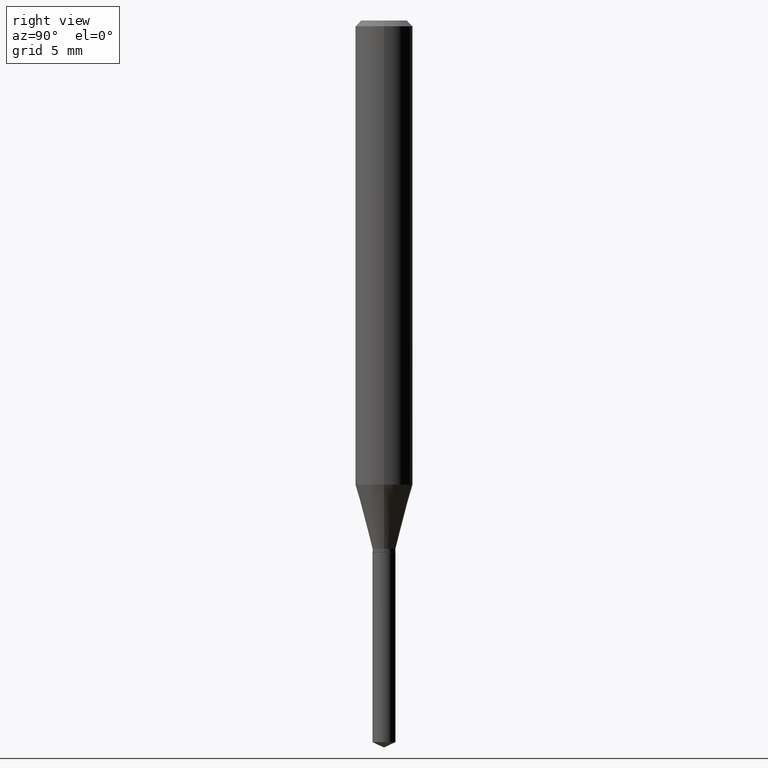
[diagram: clean part render]
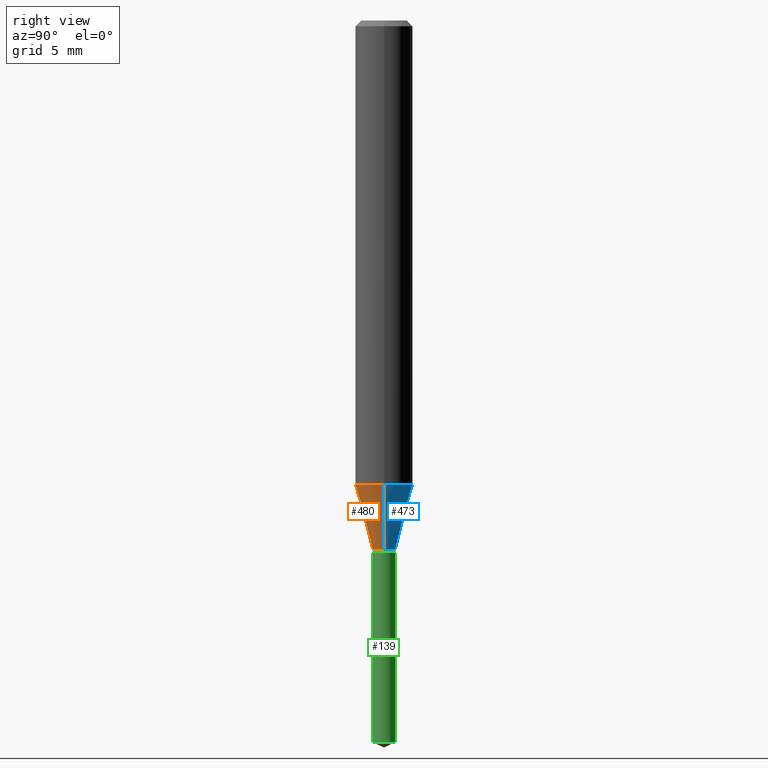
[diagram: same view with three faces highlighted in distinct colors, each labeled with its STEP entity id]
A machine part, right view with three faces highlighted in distinct colors.
Their STEP definitions:

[orange] entity #480 — the highlighted conical surface has half-angle 15 deg.
#17 = CARTESIAN_POINT ( 'NONE',  ( -0.02359999999999997516, -3.628948722218652525E-15, -1.087399999999999922 ) ) ;
#23 = AXIS2_PLACEMENT_3D ( 'NONE', #168, #392, #160 ) ;
#25 = CONICAL_SURFACE ( 'NONE', #121, 0.02359999999999997516, 0.2617993877991499074 ) ;
#38 = EDGE_CURVE ( 'NONE', #76, #280, #425, .T. ) ;
#56 = CARTESIAN_POINT ( 'NONE',  ( 2.659202779845717713E-29, -3.796636807858036634E-15, -1.087399999999999922 ) ) ;
#58 = VECTOR ( 'NONE', #111, 39.37007874015748854 ) ;
#66 = CARTESIAN_POINT ( 'NONE',  ( 2.335664319465592728E-29, -3.334709633011983914E-15, -0.9550987988716830301 ) ) ;
#76 = VERTEX_POINT ( 'NONE', #87 ) ;
#77 = DIRECTION ( 'NONE',  ( -2.445468806185136597E-29, 3.491481338843145583E-15, 1.000000000000000000 ) ) ;
#78 = EDGE_CURVE ( 'NONE', #389, #452, #269, .T. ) ;
#86 = ORIENTED_EDGE ( 'NONE', *, *, #38, .T. ) ;
#87 = CARTESIAN_POINT ( 'NONE',  ( 0.02359999999999997516, -3.961434727051432093E-15, -1.087399999999999922 ) ) ;
#97 = EDGE_CURVE ( 'NONE', #389, #76, #260, .T. ) ;
#111 = DIRECTION ( 'NONE',  ( 0.2588190451025211836, 1.565188264969622559E-15, 0.9659258262890679791 ) ) ;
#114 = EDGE_LOOP ( 'NONE', ( #386, #429, #86, #270 ) ) ;
#121 = AXIS2_PLACEMENT_3D ( 'NONE', #56, #77, #336 ) ;
#160 = DIRECTION ( 'NONE',  ( 1.000000000000000000, -6.982962677686265922E-15, 0.000000000000000000 ) ) ;
#168 = CARTESIAN_POINT ( 'NONE',  ( 2.659202779845717713E-29, -3.796636807858036634E-15, -1.087399999999999922 ) ) ;
#188 = FACE_OUTER_BOUND ( 'NONE', #114, .T. ) ;
#211 = DIRECTION ( 'NONE',  ( 1.000000000000000000, -6.982962677686266711E-15, 0.000000000000000000 ) ) ;
#229 = CARTESIAN_POINT ( 'NONE',  ( 0.02359999999999997516, -3.961434727051432093E-15, -1.087399999999999922 ) ) ;
#247 = EDGE_CURVE ( 'NONE', #452, #280, #415, .T. ) ;
#249 = CARTESIAN_POINT ( 'NONE',  ( 0.05905000000000011628, -3.747053579129358835E-15, -0.9550987988716830301 ) ) ;
#260 = CIRCLE ( 'NONE', #23, 0.02359999999999997516 ) ;
#269 = LINE ( 'NONE', #17, #423 ) ;
#270 = ORIENTED_EDGE ( 'NONE', *, *, #247, .F. ) ;
#274 = DIRECTION ( 'NONE',  ( -0.2588190451025211836, 5.211531920934547886E-15, 0.9659258262890679791 ) ) ;
#280 = VERTEX_POINT ( 'NONE', #249 ) ;
#336 = DIRECTION ( 'NONE',  ( 1.000000000000000000, -6.982962677686265922E-15, 0.000000000000000000 ) ) ;
#386 = ORIENTED_EDGE ( 'NONE', *, *, #78, .F. ) ;
#389 = VERTEX_POINT ( 'NONE', #451 ) ;
#392 = DIRECTION ( 'NONE',  ( -2.445468806185136597E-29, 3.491481338843145583E-15, 1.000000000000000000 ) ) ;
#393 = CARTESIAN_POINT ( 'NONE',  ( -0.05905000000000011628, -2.915134147545643633E-15, -0.9550987988716830301 ) ) ;
#415 = CIRCLE ( 'NONE', #475, 0.05905000000000011628 ) ;
#423 = VECTOR ( 'NONE', #274, 39.37007874015748854 ) ;
#425 = LINE ( 'NONE', #229, #58 ) ;
#429 = ORIENTED_EDGE ( 'NONE', *, *, #97, .T. ) ;
#451 = CARTESIAN_POINT ( 'NONE',  ( -0.02359999999999997516, -3.640470610636835238E-15, -1.087399999999999922 ) ) ;
#452 = VERTEX_POINT ( 'NONE', #393 ) ;
#475 = AXIS2_PLACEMENT_3D ( 'NONE', #66, #485, #211 ) ;
#480 = ADVANCED_FACE ( 'NONE', ( #188 ), #25, .T. ) ;
#485 = DIRECTION ( 'NONE',  ( -2.445468806185136597E-29, 3.491481338843145583E-15, 1.000000000000000000 ) ) ;

[blue] entity #473 — the highlighted conical surface has half-angle 15 deg.
#17 = CARTESIAN_POINT ( 'NONE',  ( -0.02359999999999997516, -3.628948722218652525E-15, -1.087399999999999922 ) ) ;
#35 = CARTESIAN_POINT ( 'NONE',  ( 2.659202779845717713E-29, -3.796636807858036634E-15, -1.087399999999999922 ) ) ;
#38 = EDGE_CURVE ( 'NONE', #76, #280, #425, .T. ) ;
#40 = ORIENTED_EDGE ( 'NONE', *, *, #78, .T. ) ;
#55 = CARTESIAN_POINT ( 'NONE',  ( 2.335664319465592728E-29, -3.334709633011983914E-15, -0.9550987988716830301 ) ) ;
#58 = VECTOR ( 'NONE', #111, 39.37007874015748854 ) ;
#76 = VERTEX_POINT ( 'NONE', #87 ) ;
#78 = EDGE_CURVE ( 'NONE', #389, #452, #269, .T. ) ;
#87 = CARTESIAN_POINT ( 'NONE',  ( 0.02359999999999997516, -3.961434727051432093E-15, -1.087399999999999922 ) ) ;
#106 = EDGE_CURVE ( 'NONE', #280, #452, #112, .T. ) ;
#111 = DIRECTION ( 'NONE',  ( 0.2588190451025211836, 1.565188264969622559E-15, 0.9659258262890679791 ) ) ;
#112 = CIRCLE ( 'NONE', #306, 0.05905000000000011628 ) ;
#126 = EDGE_CURVE ( 'NONE', #76, #389, #144, .T. ) ;
#144 = CIRCLE ( 'NONE', #385, 0.02359999999999997516 ) ;
#166 = CARTESIAN_POINT ( 'NONE',  ( 2.659202779845717713E-29, -3.796636807858036634E-15, -1.087399999999999922 ) ) ;
#182 = AXIS2_PLACEMENT_3D ( 'NONE', #35, #463, #381 ) ;
#186 = ORIENTED_EDGE ( 'NONE', *, *, #106, .F. ) ;
#195 = ORIENTED_EDGE ( 'NONE', *, *, #126, .T. ) ;
#218 = FACE_OUTER_BOUND ( 'NONE', #445, .T. ) ;
#229 = CARTESIAN_POINT ( 'NONE',  ( 0.02359999999999997516, -3.961434727051432093E-15, -1.087399999999999922 ) ) ;
#238 = DIRECTION ( 'NONE',  ( 1.000000000000000000, -6.982962677686266711E-15, 0.000000000000000000 ) ) ;
#249 = CARTESIAN_POINT ( 'NONE',  ( 0.05905000000000011628, -3.747053579129358835E-15, -0.9550987988716830301 ) ) ;
#269 = LINE ( 'NONE', #17, #423 ) ;
#274 = DIRECTION ( 'NONE',  ( -0.2588190451025211836, 5.211531920934547886E-15, 0.9659258262890679791 ) ) ;
#280 = VERTEX_POINT ( 'NONE', #249 ) ;
#306 = AXIS2_PLACEMENT_3D ( 'NONE', #55, #478, #238 ) ;
#319 = CONICAL_SURFACE ( 'NONE', #182, 0.02359999999999997516, 0.2617993877991499074 ) ;
#381 = DIRECTION ( 'NONE',  ( 1.000000000000000000, -6.982962677686265922E-15, 0.000000000000000000 ) ) ;
#385 = AXIS2_PLACEMENT_3D ( 'NONE', #166, #439, #397 ) ;
#389 = VERTEX_POINT ( 'NONE', #451 ) ;
#393 = CARTESIAN_POINT ( 'NONE',  ( -0.05905000000000011628, -2.915134147545643633E-15, -0.9550987988716830301 ) ) ;
#397 = DIRECTION ( 'NONE',  ( 1.000000000000000000, -6.982962677686265922E-15, 0.000000000000000000 ) ) ;
#421 = ORIENTED_EDGE ( 'NONE', *, *, #38, .F. ) ;
#423 = VECTOR ( 'NONE', #274, 39.37007874015748854 ) ;
#425 = LINE ( 'NONE', #229, #58 ) ;
#439 = DIRECTION ( 'NONE',  ( -2.445468806185136597E-29, 3.491481338843145583E-15, 1.000000000000000000 ) ) ;
#445 = EDGE_LOOP ( 'NONE', ( #195, #40, #186, #421 ) ) ;
#451 = CARTESIAN_POINT ( 'NONE',  ( -0.02359999999999997516, -3.640470610636835238E-15, -1.087399999999999922 ) ) ;
#452 = VERTEX_POINT ( 'NONE', #393 ) ;
#463 = DIRECTION ( 'NONE',  ( -2.445468806185136597E-29, 3.491481338843145583E-15, 1.000000000000000000 ) ) ;
#473 = ADVANCED_FACE ( 'NONE', ( #218 ), #319, .T. ) ;
#478 = DIRECTION ( 'NONE',  ( -2.445468806185136597E-29, 3.491481338843145583E-15, 1.000000000000000000 ) ) ;

[green] entity #139 — the highlighted cylindrical surface (edge-blend (fillet) strip) has radius 0.5994 mm, axis along (-0, 0, 1).
#1 = VERTEX_POINT ( 'NONE', #266 ) ;
#11 = EDGE_LOOP ( 'NONE', ( #21, #193, #288, #100 ) ) ;
#14 = DIRECTION ( 'NONE',  ( -2.445402730703145379E-29, 3.491575962694140016E-15, 1.000000000000000000 ) ) ;
#21 = ORIENTED_EDGE ( 'NONE', *, *, #477, .T. ) ;
#27 = DIRECTION ( 'NONE',  ( -2.445402730703145379E-29, 3.491575962694140016E-15, 1.000000000000000000 ) ) ;
#41 = CARTESIAN_POINT ( 'NONE',  ( 3.631728028533853753E-29, -5.185218924775541926E-15, -1.485095139267541775 ) ) ;
#94 = VERTEX_POINT ( 'NONE', #407 ) ;
#100 = ORIENTED_EDGE ( 'NONE', *, *, #315, .F. ) ;
#131 = CARTESIAN_POINT ( 'NONE',  ( 2.676565608369631794E-29, -3.821426325363822773E-15, -1.094499999999999806 ) ) ;
#133 = CARTESIAN_POINT ( 'NONE',  ( 1.676880856394103626E-16, 0.02359999999999617959, -1.094500000000000028 ) ) ;
#139 = ADVANCED_FACE ( 'NONE', ( #235 ), #390, .T. ) ;
#140 = CARTESIAN_POINT ( 'NONE',  ( -1.647979191933691307E-16, -0.02360000000000382278, -1.094499999999999806 ) ) ;
#155 = EDGE_CURVE ( 'NONE', #252, #94, #199, .T. ) ;
#167 = LINE ( 'NONE', #282, #434 ) ;
#193 = ORIENTED_EDGE ( 'NONE', *, *, #310, .T. ) ;
#198 = CARTESIAN_POINT ( 'NONE',  ( -1.647979191933595657E-16, -0.02360000000000518280, -1.485095139267541775 ) ) ;
#199 = CIRCLE ( 'NONE', #432, 0.02360000000000000292 ) ;
#212 = AXIS2_PLACEMENT_3D ( 'NONE', #131, #243, #240 ) ;
#231 = AXIS2_PLACEMENT_3D ( 'NONE', #41, #14, #470 ) ;
#235 = FACE_OUTER_BOUND ( 'NONE', #11, .T. ) ;
#237 = DIRECTION ( 'NONE',  ( -6.982962677686265133E-15, -1.000000000000000000, 5.787813545898861862E-15 ) ) ;
#240 = DIRECTION ( 'NONE',  ( -6.982962677686265133E-15, -1.000000000000000000, 5.787813545898861862E-15 ) ) ;
#243 = DIRECTION ( 'NONE',  ( -2.445402730703145379E-29, 3.491575962694140016E-15, 1.000000000000000000 ) ) ;
#252 = VERTEX_POINT ( 'NONE', #140 ) ;
#266 = CARTESIAN_POINT ( 'NONE',  ( 1.676880856394199276E-16, 0.02359999999999481263, -1.485095139267541775 ) ) ;
#282 = CARTESIAN_POINT ( 'NONE',  ( -1.647979191933691307E-16, -0.02360000000000382278, -1.094499999999999806 ) ) ;
#288 = ORIENTED_EDGE ( 'NONE', *, *, #155, .F. ) ;
#310 = EDGE_CURVE ( 'NONE', #1, #94, #369, .T. ) ;
#315 = EDGE_CURVE ( 'NONE', #465, #252, #167, .T. ) ;
#369 = LINE ( 'NONE', #133, #484 ) ;
#390 = CYLINDRICAL_SURFACE ( 'NONE', #212, 0.02360000000000000292 ) ;
#400 = DIRECTION ( 'NONE',  ( -2.445402730703145379E-29, 3.491575962694140016E-15, 1.000000000000000000 ) ) ;
#406 = CARTESIAN_POINT ( 'NONE',  ( 2.676565608369631794E-29, -3.821426325363822773E-15, -1.094499999999999806 ) ) ;
#407 = CARTESIAN_POINT ( 'NONE',  ( 1.676880856394200262E-16, 0.02359999999999617959, -1.094500000000000028 ) ) ;
#432 = AXIS2_PLACEMENT_3D ( 'NONE', #406, #400, #237 ) ;
#434 = VECTOR ( 'NONE', #27, 39.37007874015748143 ) ;
#465 = VERTEX_POINT ( 'NONE', #198 ) ;
#470 = DIRECTION ( 'NONE',  ( -6.982962677686265133E-15, -1.000000000000000000, 0.000000000000000000 ) ) ;
#477 = EDGE_CURVE ( 'NONE', #465, #1, #490, .T. ) ;
#484 = VECTOR ( 'NONE', #486, 39.37007874015748143 ) ;
#486 = DIRECTION ( 'NONE',  ( -2.445402730703145379E-29, 3.491575962694140016E-15, 1.000000000000000000 ) ) ;
#490 = CIRCLE ( 'NONE', #231, 0.02360000000000000292 ) ;